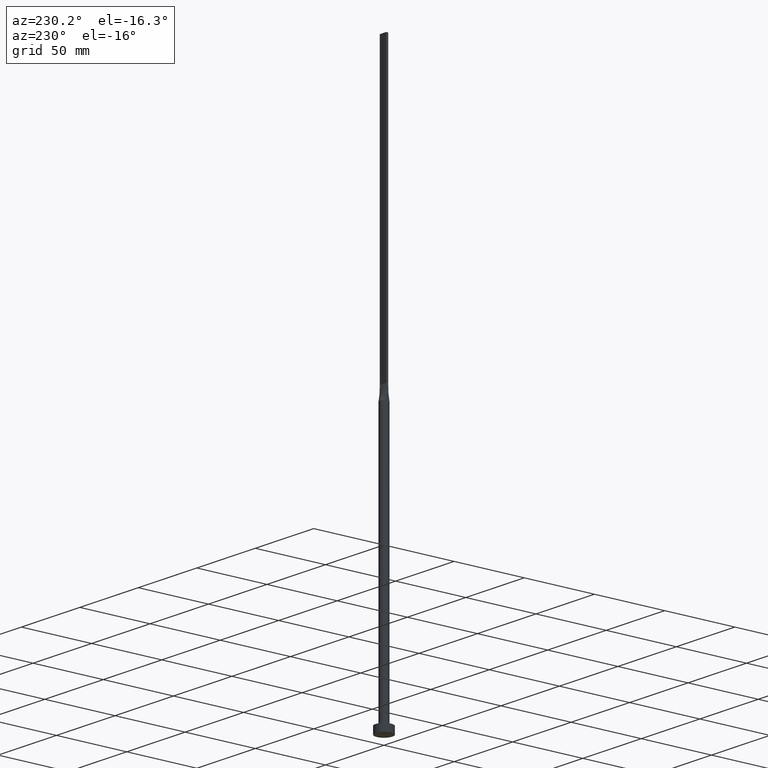
[diagram: clean part render]
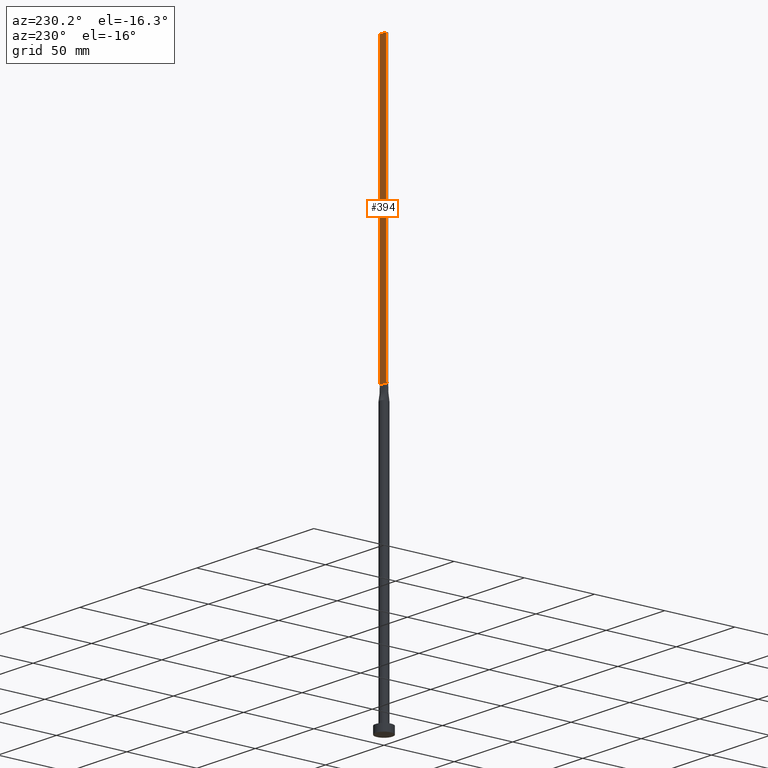
[diagram: same view with one face highlighted and labeled with its STEP entity id]
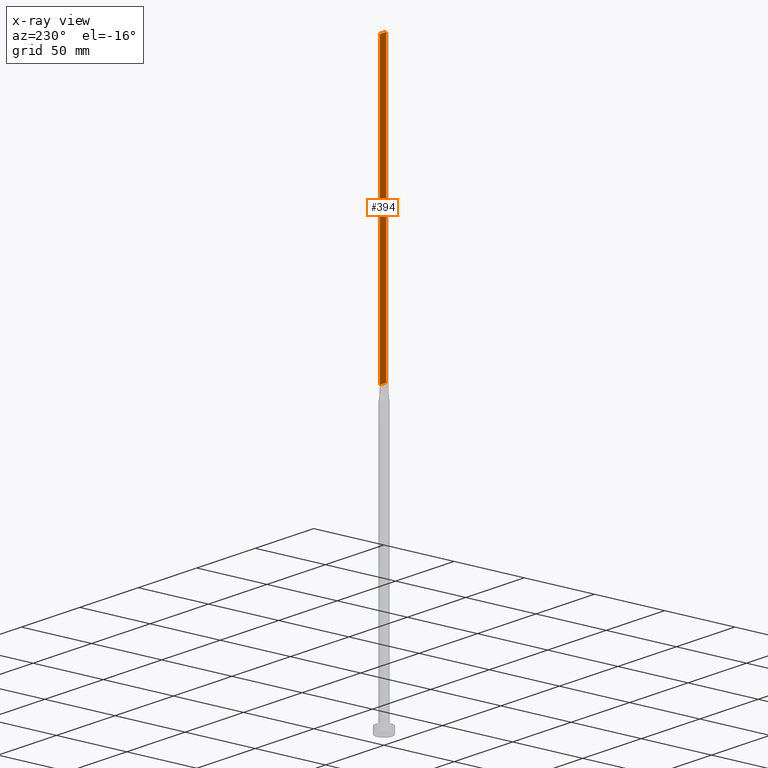
[diagram: x-ray of the same camera — body ghosted, the highlighted face saturated]
A machine part, auxiliary view. The second image highlights one B-rep face of the part: STEP entity #394.
The next image is the same camera in x-ray: the body ghosted, the highlighted face saturated — about 0% of this face is hidden behind the body in this view.
In plain terms, the highlighted planar face has unit normal (0, -1, 0).
Its self-contained STEP definition (entity closure, byte-faithful):
#13 = ORIENTED_EDGE ( 'NONE', *, *, #186, .T. ) ;
#17 = DIRECTION ( 'NONE',  ( 0.000000000000000000, -0.000000000000000000, -1.000000000000000000 ) ) ;
#57 = CARTESIAN_POINT ( 'NONE',  ( 2.750000000000000000, 0.7500000000000002220, 400.0000000000000000 ) ) ;
#85 = VERTEX_POINT ( 'NONE', #404 ) ;
#99 = LINE ( 'NONE', #363, #355 ) ;
#102 = DIRECTION ( 'NONE',  ( -1.000000000000000000, -0.000000000000000000, -0.000000000000000000 ) ) ;
#142 = VERTEX_POINT ( 'NONE', #539 ) ;
#161 = CARTESIAN_POINT ( 'NONE',  ( 2.750000000000000000, 0.7500000000000002220, 400.0000000000000000 ) ) ;
#186 = EDGE_CURVE ( 'NONE', #142, #85, #196, .T. ) ;
#187 = CARTESIAN_POINT ( 'NONE',  ( -2.750000000000000000, 0.7500000000000002220, 400.0000000000000000 ) ) ;
#196 = LINE ( 'NONE', #412, #441 ) ;
#199 = EDGE_LOOP ( 'NONE', ( #13, #417, #375, #401 ) ) ;
#233 = DIRECTION ( 'NONE',  ( -1.000000000000000000, 0.000000000000000000, 0.000000000000000000 ) ) ;
#236 = CARTESIAN_POINT ( 'NONE',  ( 2.750000000000000000, 0.7500000000000002220, 400.0000000000000000 ) ) ;
#241 = EDGE_CURVE ( 'NONE', #247, #470, #376, .T. ) ;
#246 = VECTOR ( 'NONE', #233, 1000.000000000000000 ) ;
#247 = VERTEX_POINT ( 'NONE', #161 ) ;
#258 = VECTOR ( 'NONE', #524, 1000.000000000000000 ) ;
#281 = PLANE ( 'NONE',  #309 ) ;
#282 = DIRECTION ( 'NONE',  ( -0.000000000000000000, -0.000000000000000000, -1.000000000000000000 ) ) ;
#298 = EDGE_CURVE ( 'NONE', #247, #142, #346, .T. ) ;
#299 = CARTESIAN_POINT ( 'NONE',  ( 2.750000000000000000, 0.7500000000000002220, 400.0000000000000000 ) ) ;
#309 = AXIS2_PLACEMENT_3D ( 'NONE', #236, #414, #17 ) ;
#346 = LINE ( 'NONE', #299, #258 ) ;
#355 = VECTOR ( 'NONE', #282, 1000.000000000000000 ) ;
#363 = CARTESIAN_POINT ( 'NONE',  ( -2.750000000000000000, 0.7500000000000002220, 400.0000000000000000 ) ) ;
#375 = ORIENTED_EDGE ( 'NONE', *, *, #241, .F. ) ;
#376 = LINE ( 'NONE', #57, #246 ) ;
#394 = ADVANCED_FACE ( 'NONE', ( #504 ), #281, .F. ) ;
#401 = ORIENTED_EDGE ( 'NONE', *, *, #298, .T. ) ;
#404 = CARTESIAN_POINT ( 'NONE',  ( -2.750000000000000000, 0.7500000000000002220, 200.0000000000000000 ) ) ;
#412 = CARTESIAN_POINT ( 'NONE',  ( -2.750000000000000000, 0.7500000000000002220, 200.0000000000000000 ) ) ;
#414 = DIRECTION ( 'NONE',  ( 0.000000000000000000, -1.000000000000000000, 0.000000000000000000 ) ) ;
#417 = ORIENTED_EDGE ( 'NONE', *, *, #484, .F. ) ;
#441 = VECTOR ( 'NONE', #102, 1000.000000000000000 ) ;
#470 = VERTEX_POINT ( 'NONE', #187 ) ;
#484 = EDGE_CURVE ( 'NONE', #470, #85, #99, .T. ) ;
#504 = FACE_OUTER_BOUND ( 'NONE', #199, .T. ) ;
#524 = DIRECTION ( 'NONE',  ( -0.000000000000000000, -0.000000000000000000, -1.000000000000000000 ) ) ;
#539 = CARTESIAN_POINT ( 'NONE',  ( 2.750000000000000000, 0.7500000000000002220, 200.0000000000000000 ) ) ;